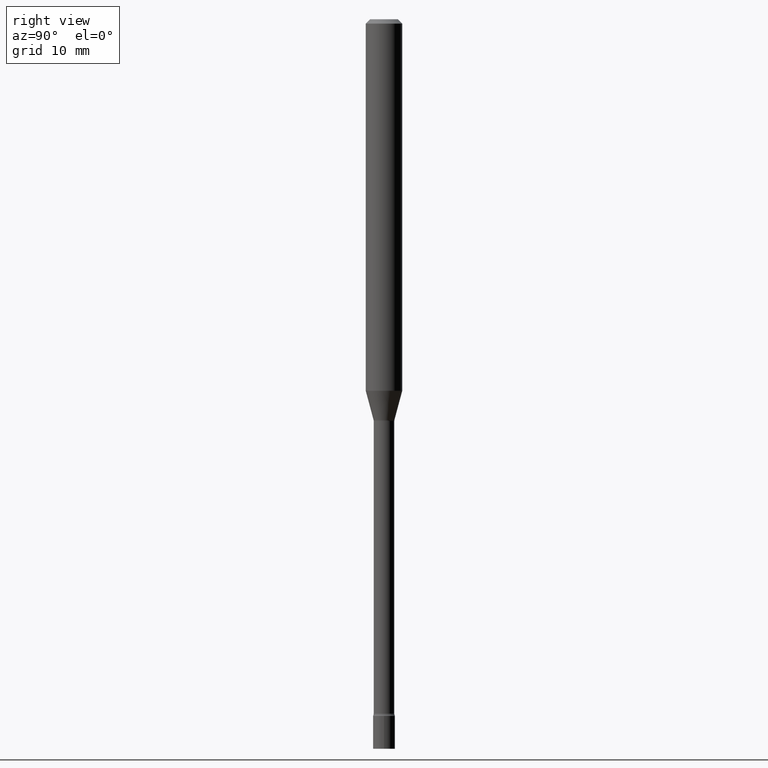
[diagram: clean part render]
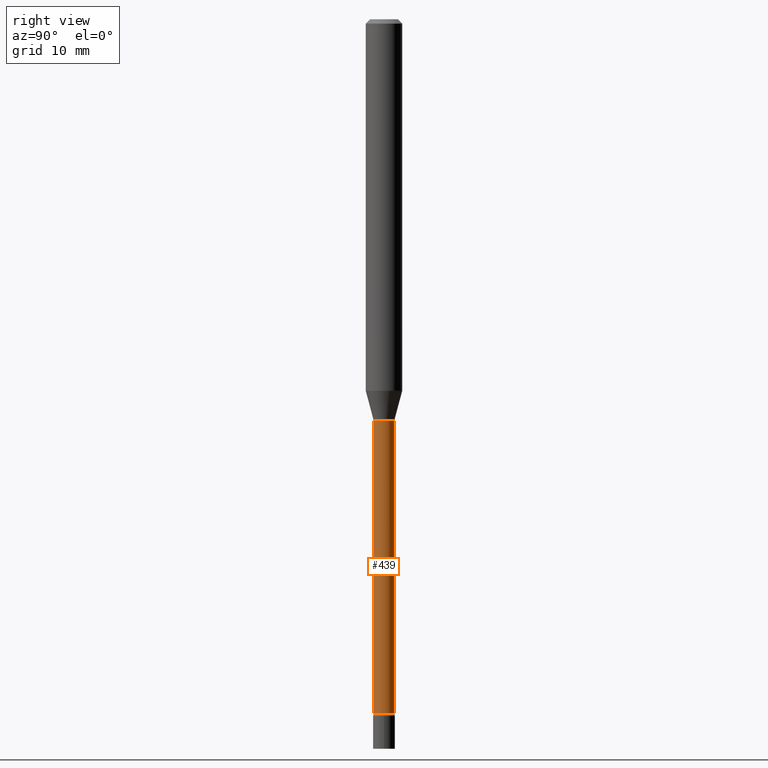
[diagram: same view with one face highlighted and labeled with its STEP entity id]
A machine part, right view. The second image highlights one B-rep face of the part: STEP entity #439.
In plain terms, the highlighted cylindrical surface (edge-blend (fillet) strip) has radius 0.8954 mm, axis along (-0, 0, 1).
Its self-contained STEP definition (entity closure, byte-faithful):
#2 = EDGE_LOOP ( 'NONE', ( #57, #248, #200, #14 ) ) ;
#10 = DIRECTION ( 'NONE',  ( -2.445422782025586364E-29, 3.491547248059153888E-15, 1.000000000000000000 ) ) ;
#14 = ORIENTED_EDGE ( 'NONE', *, *, #323, .F. ) ;
#32 = EDGE_CURVE ( 'NONE', #272, #150, #383, .T. ) ;
#37 = DIRECTION ( 'NONE',  ( -2.445422782025586364E-29, 3.491547248059153888E-15, 1.000000000000000000 ) ) ;
#57 = ORIENTED_EDGE ( 'NONE', *, *, #225, .T. ) ;
#68 = VERTEX_POINT ( 'NONE', #233 ) ;
#70 = VECTOR ( 'NONE', #37, 39.37007874015748143 ) ;
#89 = CYLINDRICAL_SURFACE ( 'NONE', #365, 0.03525000000000007988 ) ;
#109 = DIRECTION ( 'NONE',  ( -6.982962677686265133E-15, -1.000000000000000000, 0.000000000000000000 ) ) ;
#112 = DIRECTION ( 'NONE',  ( -2.445422782025586364E-29, 3.491547248059153888E-15, 1.000000000000000000 ) ) ;
#127 = CARTESIAN_POINT ( 'NONE',  ( 2.504663143554939137E-16, 0.03524999999999518796, -1.376974787463810967 ) ) ;
#150 = VERTEX_POINT ( 'NONE', #127 ) ;
#160 = CIRCLE ( 'NONE', #325, 0.03525000000000016315 ) ;
#168 = CARTESIAN_POINT ( 'NONE',  ( 5.817901084912006179E-29, -8.306733981466744129E-15, -2.379098259685360706 ) ) ;
#175 = DIRECTION ( 'NONE',  ( -2.445422782025586364E-29, 3.491547248059153888E-15, 1.000000000000000000 ) ) ;
#176 = AXIS2_PLACEMENT_3D ( 'NONE', #386, #112, #109 ) ;
#179 = CARTESIAN_POINT ( 'NONE',  ( -2.461494343884414202E-16, -0.03525000000000007988, 1.230770404940854370E-16 ) ) ;
#191 = DIRECTION ( 'NONE',  ( -6.982962677686265922E-15, -1.000000000000000000, 3.491547248059153493E-15 ) ) ;
#200 = ORIENTED_EDGE ( 'NONE', *, *, #32, .F. ) ;
#206 = EDGE_CURVE ( 'NONE', #68, #150, #255, .T. ) ;
#225 = EDGE_CURVE ( 'NONE', #313, #68, #160, .T. ) ;
#233 = CARTESIAN_POINT ( 'NONE',  ( 2.584599201327950479E-16, 0.03524999999999185729, -2.379098259685360706 ) ) ;
#239 = VECTOR ( 'NONE', #10, 39.37007874015748143 ) ;
#248 = ORIENTED_EDGE ( 'NONE', *, *, #206, .T. ) ;
#255 = LINE ( 'NONE', #493, #239 ) ;
#257 = CARTESIAN_POINT ( 'NONE',  ( 0.000000000000000000, 0.000000000000000000, 0.000000000000000000 ) ) ;
#272 = VERTEX_POINT ( 'NONE', #316 ) ;
#277 = LINE ( 'NONE', #179, #70 ) ;
#291 = FACE_OUTER_BOUND ( 'NONE', #2, .T. ) ;
#313 = VERTEX_POINT ( 'NONE', #519 ) ;
#316 = CARTESIAN_POINT ( 'NONE',  ( -2.461494343884071541E-16, -0.03525000000000479833, -1.376974787463810967 ) ) ;
#323 = EDGE_CURVE ( 'NONE', #313, #272, #277, .T. ) ;
#325 = AXIS2_PLACEMENT_3D ( 'NONE', #168, #328, #410 ) ;
#328 = DIRECTION ( 'NONE',  ( -2.445422782025586364E-29, 3.491547248059153888E-15, 1.000000000000000000 ) ) ;
#365 = AXIS2_PLACEMENT_3D ( 'NONE', #257, #175, #191 ) ;
#383 = CIRCLE ( 'NONE', #176, 0.03524999999999999661 ) ;
#386 = CARTESIAN_POINT ( 'NONE',  ( 3.367285515538842797E-29, -4.807772529816107808E-15, -1.376974787463810967 ) ) ;
#410 = DIRECTION ( 'NONE',  ( -6.982962677686265922E-15, -1.000000000000000000, 0.000000000000000000 ) ) ;
#439 = ADVANCED_FACE ( 'NONE', ( #291 ), #89, .T. ) ;
#493 = CARTESIAN_POINT ( 'NONE',  ( 2.504663143554358338E-16, 0.03525000000000007988, -1.230770404940854370E-16 ) ) ;
#519 = CARTESIAN_POINT ( 'NONE',  ( -2.461494343883838334E-16, -0.03525000000000846900, -2.379098259685360706 ) ) ;